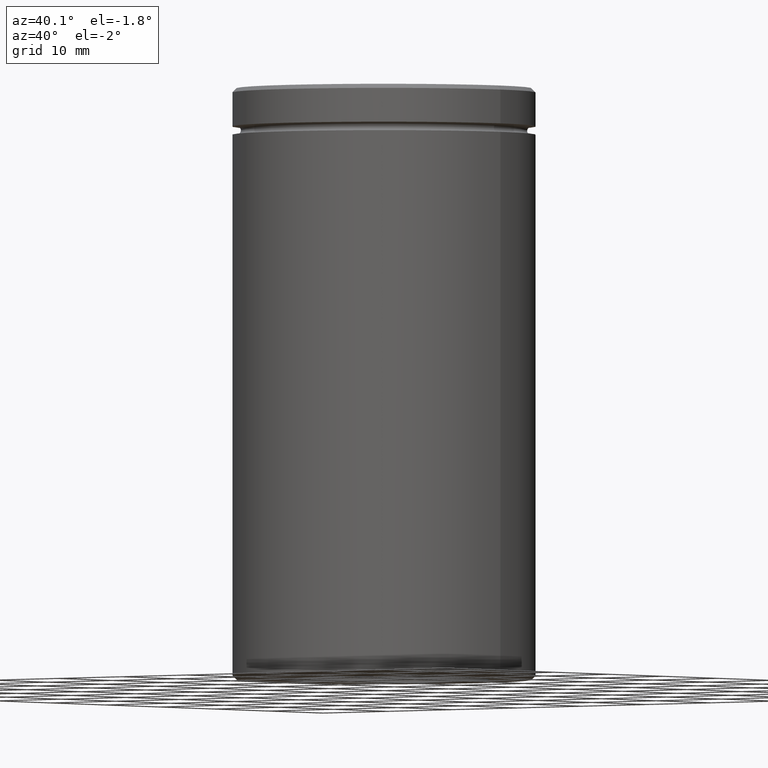
[diagram: clean part render]
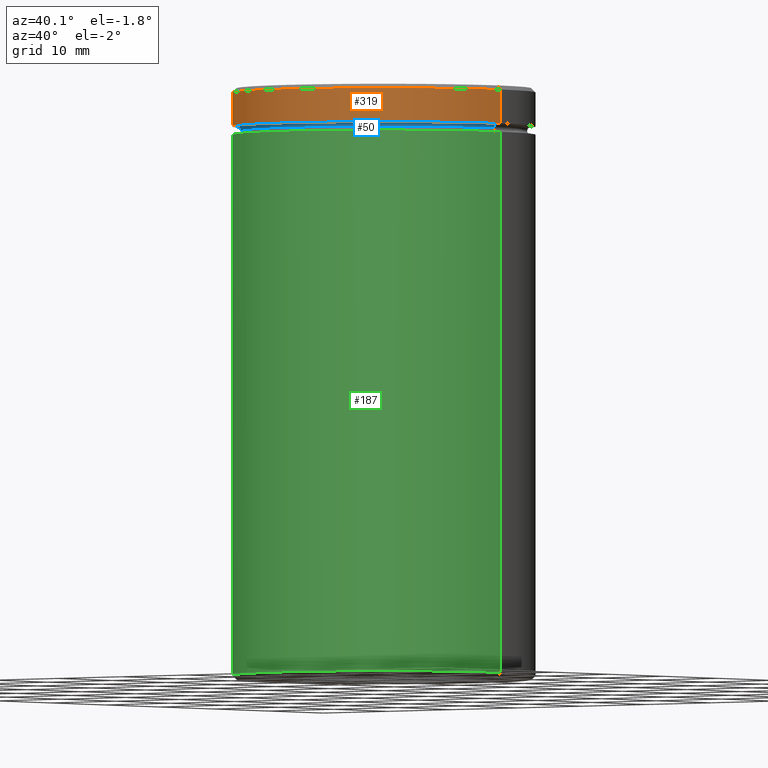
[diagram: same view with three faces highlighted in distinct colors, each labeled with its STEP entity id]
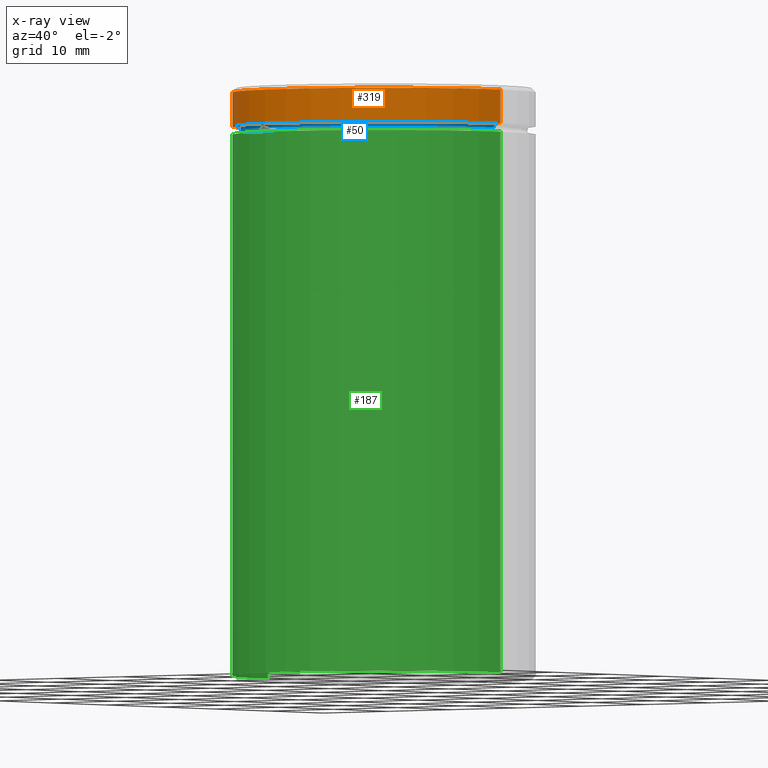
[diagram: x-ray of the same camera — body ghosted, the three highlighted faces saturated]
A machine part, auxiliary view with three faces highlighted in distinct colors.
The next image is the same camera in x-ray (body ghosted, the three faces saturated) — at least one of them is partly hidden behind the body in this view.
Their STEP definitions:

[orange] entity #319 — the highlighted cylindrical surface (partial cylindrical patch) has radius 18 mm, axis along (-0, -0, 1).
#1 = EDGE_LOOP ( 'NONE', ( #355, #127, #502, #558 ) ) ;
#15 = CYLINDRICAL_SURFACE ( 'NONE', #164, 18.00000000000000000 ) ;
#43 = DIRECTION ( 'NONE',  ( -0.000000000000000000, -0.000000000000000000, 1.000000000000000000 ) ) ;
#45 = FACE_OUTER_BOUND ( 'NONE', #1, .T. ) ;
#59 = DIRECTION ( 'NONE',  ( -0.000000000000000000, -0.000000000000000000, 1.000000000000000000 ) ) ;
#79 = CARTESIAN_POINT ( 'NONE',  ( 18.00000000000000000, 0.000000000000000000, 0.000000000000000000 ) ) ;
#115 = CARTESIAN_POINT ( 'NONE',  ( -18.00000000000000000, 2.204364238465235428E-15, -0.5000000000000177636 ) ) ;
#127 = ORIENTED_EDGE ( 'NONE', *, *, #512, .T. ) ;
#134 = VERTEX_POINT ( 'NONE', #557 ) ;
#138 = CARTESIAN_POINT ( 'NONE',  ( 0.000000000000000000, 0.000000000000000000, -0.5000000000000177636 ) ) ;
#144 = CARTESIAN_POINT ( 'NONE',  ( 18.00000000000000000, 0.000000000000000000, -0.5000000000000177636 ) ) ;
#164 = AXIS2_PLACEMENT_3D ( 'NONE', #369, #540, #531 ) ;
#175 = VECTOR ( 'NONE', #59, 1000.000000000000000 ) ;
#199 = VERTEX_POINT ( 'NONE', #115 ) ;
#236 = DIRECTION ( 'NONE',  ( 1.000000000000000000, 0.000000000000000000, 0.000000000000000000 ) ) ;
#294 = CARTESIAN_POINT ( 'NONE',  ( 18.00000000000000000, 0.000000000000000000, -4.500000000000000888 ) ) ;
#304 = LINE ( 'NONE', #79, #317 ) ;
#317 = VECTOR ( 'NONE', #43, 1000.000000000000000 ) ;
#319 = ADVANCED_FACE ( 'NONE', ( #45 ), #15, .T. ) ;
#336 = LINE ( 'NONE', #500, #175 ) ;
#347 = EDGE_CURVE ( 'NONE', #384, #199, #542, .T. ) ;
#355 = ORIENTED_EDGE ( 'NONE', *, *, #364, .F. ) ;
#358 = CIRCLE ( 'NONE', #396, 18.00000000000000000 ) ;
#364 = EDGE_CURVE ( 'NONE', #134, #199, #336, .T. ) ;
#369 = CARTESIAN_POINT ( 'NONE',  ( 0.000000000000000000, 0.000000000000000000, 0.000000000000000000 ) ) ;
#372 = DIRECTION ( 'NONE',  ( 1.000000000000000000, 0.000000000000000000, 0.000000000000000000 ) ) ;
#384 = VERTEX_POINT ( 'NONE', #144 ) ;
#396 = AXIS2_PLACEMENT_3D ( 'NONE', #547, #452, #372 ) ;
#452 = DIRECTION ( 'NONE',  ( -0.000000000000000000, -0.000000000000000000, 1.000000000000000000 ) ) ;
#480 = EDGE_CURVE ( 'NONE', #505, #384, #304, .T. ) ;
#493 = DIRECTION ( 'NONE',  ( 0.000000000000000000, 0.000000000000000000, -1.000000000000000000 ) ) ;
#500 = CARTESIAN_POINT ( 'NONE',  ( -18.00000000000000000, 2.204364238465235428E-15, 0.000000000000000000 ) ) ;
#502 = ORIENTED_EDGE ( 'NONE', *, *, #480, .T. ) ;
#505 = VERTEX_POINT ( 'NONE', #294 ) ;
#512 = EDGE_CURVE ( 'NONE', #134, #505, #358, .T. ) ;
#519 = AXIS2_PLACEMENT_3D ( 'NONE', #138, #493, #236 ) ;
#531 = DIRECTION ( 'NONE',  ( 1.000000000000000000, 0.000000000000000000, 0.000000000000000000 ) ) ;
#540 = DIRECTION ( 'NONE',  ( -0.000000000000000000, -0.000000000000000000, 1.000000000000000000 ) ) ;
#542 = CIRCLE ( 'NONE', #519, 18.00000000000000000 ) ;
#547 = CARTESIAN_POINT ( 'NONE',  ( 0.000000000000000000, 0.000000000000000000, -4.500000000000000888 ) ) ;
#557 = CARTESIAN_POINT ( 'NONE',  ( -18.00000000000000000, 2.204364238465235428E-15, -4.500000000000000888 ) ) ;
#558 = ORIENTED_EDGE ( 'NONE', *, *, #347, .T. ) ;

[blue] entity #50 — the highlighted toroidal blend (fillet) surface has major radius 17.5 mm and minor (blend) radius 0.5 mm.
#4 = CARTESIAN_POINT ( 'NONE',  ( 17.49999999999999645, 2.143131898507867854E-15, -5.000000000000000888 ) ) ;
#20 = EDGE_CURVE ( 'NONE', #378, #233, #408, .T. ) ;
#50 = ADVANCED_FACE ( 'NONE', ( #111 ), #341, .F. ) ;
#62 = DIRECTION ( 'NONE',  ( -1.000000000000000000, 0.000000000000000000, 0.000000000000000000 ) ) ;
#103 = DIRECTION ( 'NONE',  ( 0.000000000000000000, 0.000000000000000000, -1.000000000000000000 ) ) ;
#107 = EDGE_CURVE ( 'NONE', #541, #191, #556, .T. ) ;
#110 = CARTESIAN_POINT ( 'NONE',  ( 0.000000000000000000, 0.000000000000000000, -5.000000000000000888 ) ) ;
#111 = FACE_OUTER_BOUND ( 'NONE', #335, .T. ) ;
#133 = CIRCLE ( 'NONE', #406, 0.5000000000000004441 ) ;
#140 = CARTESIAN_POINT ( 'NONE',  ( -17.49999999999999645, 0.000000000000000000, -4.500000000000000888 ) ) ;
#150 = CARTESIAN_POINT ( 'NONE',  ( 0.000000000000000000, 0.000000000000000000, -4.500000000000000888 ) ) ;
#156 = ORIENTED_EDGE ( 'NONE', *, *, #20, .F. ) ;
#163 = CARTESIAN_POINT ( 'NONE',  ( -16.99999999999999645, 2.112515728529184067E-15, -4.999999999999999112 ) ) ;
#167 = AXIS2_PLACEMENT_3D ( 'NONE', #180, #524, #254 ) ;
#177 = CARTESIAN_POINT ( 'NONE',  ( 16.99999999999999645, 0.000000000000000000, -4.999999999999999112 ) ) ;
#180 = CARTESIAN_POINT ( 'NONE',  ( 0.000000000000000000, 0.000000000000000000, -4.999999999999999112 ) ) ;
#191 = VERTEX_POINT ( 'NONE', #177 ) ;
#195 = AXIS2_PLACEMENT_3D ( 'NONE', #150, #538, #62 ) ;
#215 = ORIENTED_EDGE ( 'NONE', *, *, #296, .T. ) ;
#233 = VERTEX_POINT ( 'NONE', #302 ) ;
#234 = DIRECTION ( 'NONE',  ( -1.224646799147353207E-16, 1.000000000000000000, 0.000000000000000000 ) ) ;
#239 = ORIENTED_EDGE ( 'NONE', *, *, #107, .T. ) ;
#254 = DIRECTION ( 'NONE',  ( 1.000000000000000000, 0.000000000000000000, 0.000000000000000000 ) ) ;
#285 = DIRECTION ( 'NONE',  ( -1.000000000000000000, -1.224646799147349509E-16, 0.000000000000000000 ) ) ;
#296 = EDGE_CURVE ( 'NONE', #191, #233, #357, .T. ) ;
#302 = CARTESIAN_POINT ( 'NONE',  ( 17.49999999999999645, 2.143131898507867854E-15, -4.500000000000000888 ) ) ;
#307 = DIRECTION ( 'NONE',  ( 0.000000000000000000, 0.000000000000000000, -1.000000000000000000 ) ) ;
#335 = EDGE_LOOP ( 'NONE', ( #239, #215, #156, #410 ) ) ;
#341 = TOROIDAL_SURFACE ( 'NONE', #351, 17.49999999999999645, 0.5000000000000000000 ) ;
#351 = AXIS2_PLACEMENT_3D ( 'NONE', #110, #103, #461 ) ;
#357 = CIRCLE ( 'NONE', #527, 0.5000000000000004441 ) ;
#378 = VERTEX_POINT ( 'NONE', #140 ) ;
#406 = AXIS2_PLACEMENT_3D ( 'NONE', #469, #515, #307 ) ;
#408 = CIRCLE ( 'NONE', #195, 17.49999999999999645 ) ;
#410 = ORIENTED_EDGE ( 'NONE', *, *, #522, .F. ) ;
#461 = DIRECTION ( 'NONE',  ( -1.000000000000000000, 0.000000000000000000, 0.000000000000000000 ) ) ;
#469 = CARTESIAN_POINT ( 'NONE',  ( -17.49999999999999645, 0.000000000000000000, -5.000000000000000888 ) ) ;
#515 = DIRECTION ( 'NONE',  ( -0.000000000000000000, -1.000000000000000000, -0.000000000000000000 ) ) ;
#522 = EDGE_CURVE ( 'NONE', #541, #378, #133, .T. ) ;
#524 = DIRECTION ( 'NONE',  ( -0.000000000000000000, -0.000000000000000000, 1.000000000000000000 ) ) ;
#527 = AXIS2_PLACEMENT_3D ( 'NONE', #4, #234, #285 ) ;
#538 = DIRECTION ( 'NONE',  ( -0.000000000000000000, -0.000000000000000000, 1.000000000000000000 ) ) ;
#541 = VERTEX_POINT ( 'NONE', #163 ) ;
#556 = CIRCLE ( 'NONE', #167, 16.99999999999999645 ) ;

[green] entity #187 — the highlighted cylindrical surface (partial cylindrical patch) has radius 18 mm, axis along (-0, -0, 1).
#6 = LINE ( 'NONE', #418, #44 ) ;
#23 = CIRCLE ( 'NONE', #562, 18.00000000000000000 ) ;
#25 = ORIENTED_EDGE ( 'NONE', *, *, #440, .T. ) ;
#44 = VECTOR ( 'NONE', #362, 1000.000000000000000 ) ;
#48 = DIRECTION ( 'NONE',  ( -0.000000000000000000, -0.000000000000000000, 1.000000000000000000 ) ) ;
#76 = DIRECTION ( 'NONE',  ( -0.000000000000000000, -0.000000000000000000, 1.000000000000000000 ) ) ;
#77 = EDGE_CURVE ( 'NONE', #278, #130, #496, .T. ) ;
#122 = CYLINDRICAL_SURFACE ( 'NONE', #211, 18.00000000000000000 ) ;
#123 = VERTEX_POINT ( 'NONE', #371 ) ;
#130 = VERTEX_POINT ( 'NONE', #437 ) ;
#141 = LINE ( 'NONE', #327, #320 ) ;
#146 = DIRECTION ( 'NONE',  ( 1.000000000000000000, 0.000000000000000000, 0.000000000000000000 ) ) ;
#160 = EDGE_LOOP ( 'NONE', ( #417, #25, #550, #401 ) ) ;
#187 = ADVANCED_FACE ( 'NONE', ( #309 ), #122, .T. ) ;
#190 = DIRECTION ( 'NONE',  ( -0.000000000000000000, -0.000000000000000000, 1.000000000000000000 ) ) ;
#196 = DIRECTION ( 'NONE',  ( -0.000000000000000000, -0.000000000000000000, 1.000000000000000000 ) ) ;
#211 = AXIS2_PLACEMENT_3D ( 'NONE', #298, #76, #312 ) ;
#278 = VERTEX_POINT ( 'NONE', #282 ) ;
#281 = VERTEX_POINT ( 'NONE', #414 ) ;
#282 = CARTESIAN_POINT ( 'NONE',  ( -18.00000000000000000, 2.204364238465235428E-15, -5.500000000000000000 ) ) ;
#298 = CARTESIAN_POINT ( 'NONE',  ( 0.000000000000000000, 0.000000000000000000, 0.000000000000000000 ) ) ;
#309 = FACE_OUTER_BOUND ( 'NONE', #160, .T. ) ;
#312 = DIRECTION ( 'NONE',  ( 1.000000000000000000, 0.000000000000000000, 0.000000000000000000 ) ) ;
#313 = EDGE_CURVE ( 'NONE', #281, #278, #6, .T. ) ;
#320 = VECTOR ( 'NONE', #48, 1000.000000000000000 ) ;
#322 = AXIS2_PLACEMENT_3D ( 'NONE', #363, #190, #146 ) ;
#327 = CARTESIAN_POINT ( 'NONE',  ( 18.00000000000000000, 0.000000000000000000, 0.000000000000000000 ) ) ;
#362 = DIRECTION ( 'NONE',  ( -0.000000000000000000, -0.000000000000000000, 1.000000000000000000 ) ) ;
#363 = CARTESIAN_POINT ( 'NONE',  ( 0.000000000000000000, 0.000000000000000000, -5.500000000000000000 ) ) ;
#371 = CARTESIAN_POINT ( 'NONE',  ( 18.00000000000000000, 0.000000000000000000, -69.50000000000001421 ) ) ;
#401 = ORIENTED_EDGE ( 'NONE', *, *, #77, .F. ) ;
#414 = CARTESIAN_POINT ( 'NONE',  ( -18.00000000000000000, 2.204364238465235428E-15, -69.50000000000001421 ) ) ;
#417 = ORIENTED_EDGE ( 'NONE', *, *, #313, .F. ) ;
#418 = CARTESIAN_POINT ( 'NONE',  ( -18.00000000000000000, 2.204364238465235428E-15, 0.000000000000000000 ) ) ;
#437 = CARTESIAN_POINT ( 'NONE',  ( 18.00000000000000000, 0.000000000000000000, -5.500000000000000000 ) ) ;
#440 = EDGE_CURVE ( 'NONE', #281, #123, #23, .T. ) ;
#450 = EDGE_CURVE ( 'NONE', #123, #130, #141, .T. ) ;
#451 = CARTESIAN_POINT ( 'NONE',  ( 0.000000000000000000, 0.000000000000000000, -69.50000000000001421 ) ) ;
#496 = CIRCLE ( 'NONE', #322, 18.00000000000000000 ) ;
#533 = DIRECTION ( 'NONE',  ( -1.000000000000000000, 0.000000000000000000, 0.000000000000000000 ) ) ;
#550 = ORIENTED_EDGE ( 'NONE', *, *, #450, .T. ) ;
#562 = AXIS2_PLACEMENT_3D ( 'NONE', #451, #196, #533 ) ;